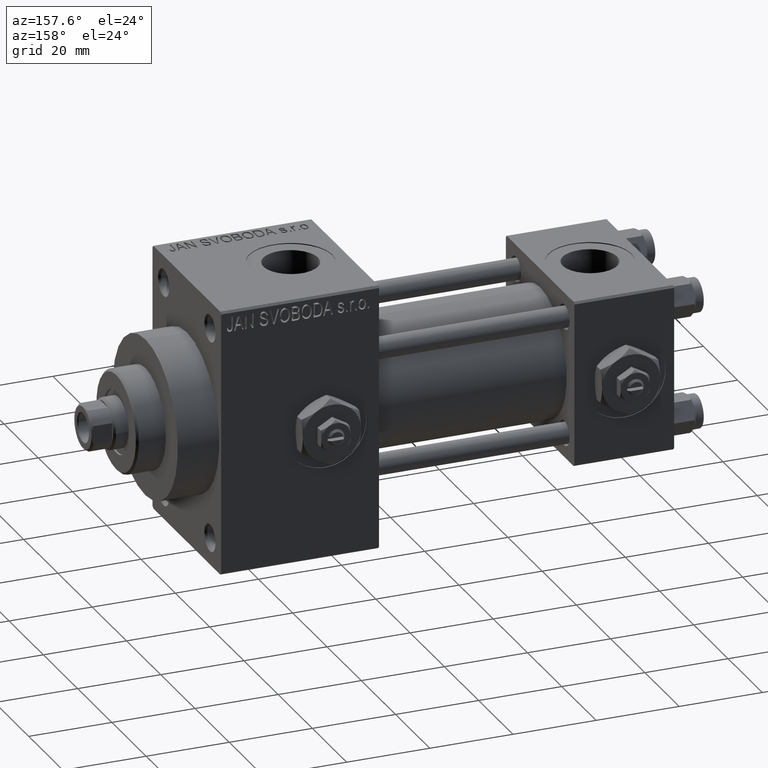
[diagram: clean part render]
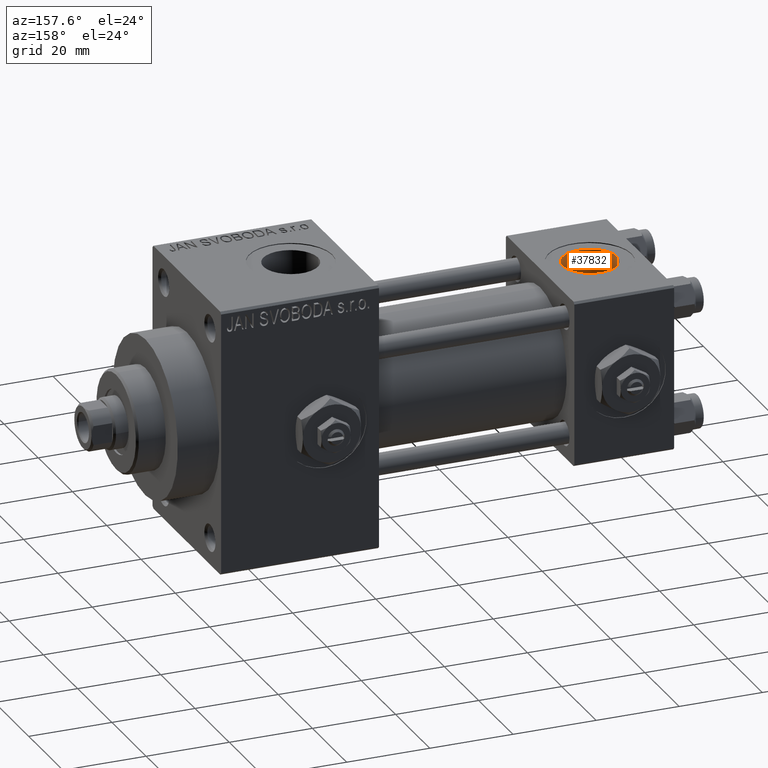
[diagram: same view with one face highlighted and labeled with its STEP entity id]
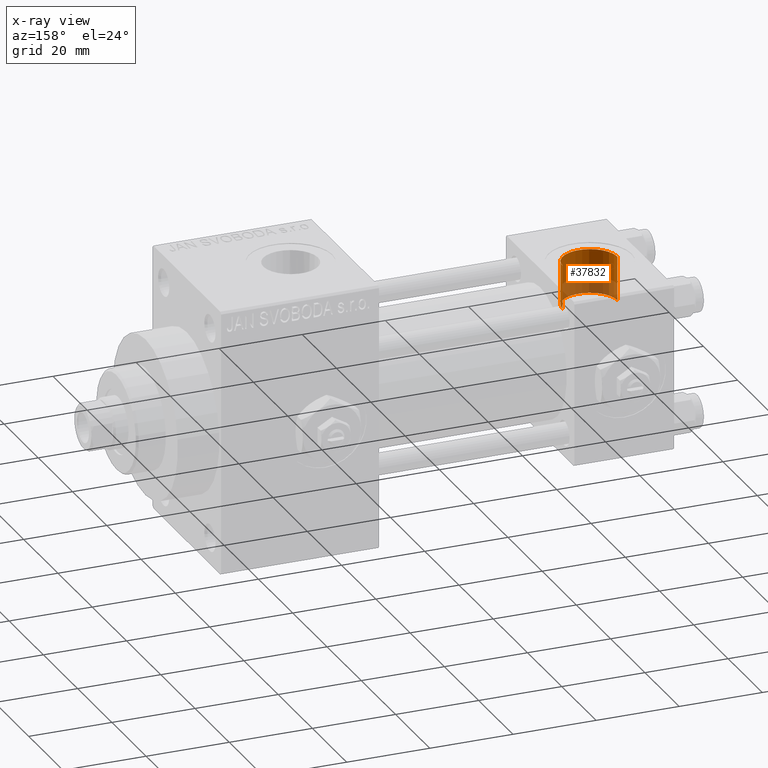
[diagram: x-ray of the same camera — body ghosted, the highlighted face saturated]
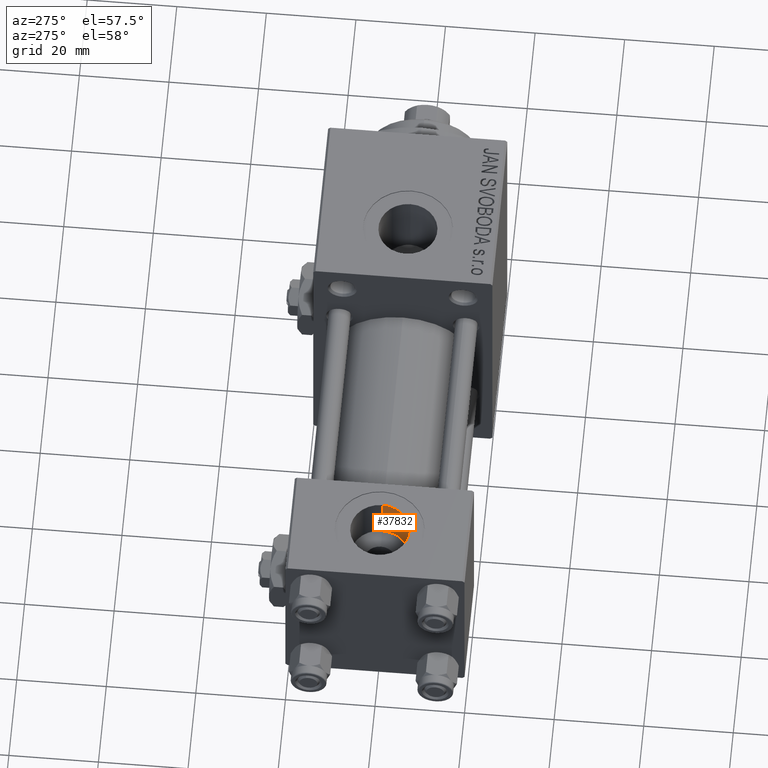
[diagram: same view with one face highlighted and labeled with its STEP entity id]
A machine part, auxiliary view. The second image highlights one B-rep face of the part: STEP entity #37832.
The next image is the same camera in x-ray: the body ghosted, the highlighted face saturated — about 36% of this face is hidden behind the body in this view.
A second angle (auxiliary view) of the same face is appended — the face is thin or edge-on in the first view.
In plain terms, the highlighted cylindrical surface (edge-blend (fillet) strip) has radius 6.58 mm, axis along (0, 0, 1).
Its self-contained STEP definition (entity closure, byte-faithful):
#101 = CARTESIAN_POINT ( 'NONE',  ( 12.00000000000000000, 1.540743955509788682E-30, 19.79999999999999716 ) ) ;
#6862 = DIRECTION ( 'NONE',  ( -0.000000000000000000, -0.000000000000000000, -1.000000000000000000 ) ) ;
#16553 = VERTEX_POINT ( 'NONE', #37769 ) ;
#17333 = EDGE_CURVE ( 'NONE', #41473, #44595, #42569, .T. ) ;
#17388 = FACE_OUTER_BOUND ( 'NONE', #21787, .T. ) ;
#17855 = EDGE_CURVE ( 'NONE', #21053, #44595, #25239, .T. ) ;
#18052 = VECTOR ( 'NONE', #44605, 1000.000000000000000 ) ;
#18191 = AXIS2_PLACEMENT_3D ( 'NONE', #48172, #25332, #40730 ) ;
#19872 = EDGE_CURVE ( 'NONE', #21053, #16553, #21941, .T. ) ;
#21053 = VERTEX_POINT ( 'NONE', #27824 ) ;
#21787 = EDGE_LOOP ( 'NONE', ( #25940, #45505, #48050, #38263 ) ) ;
#21941 = CIRCLE ( 'NONE', #44945, 6.579999999999999183 ) ;
#21979 = AXIS2_PLACEMENT_3D ( 'NONE', #101, #26384, #41302 ) ;
#23262 = LINE ( 'NONE', #26972, #34485 ) ;
#23839 = EDGE_CURVE ( 'NONE', #16553, #41473, #23262, .T. ) ;
#25239 = LINE ( 'NONE', #29435, #18052 ) ;
#25332 = DIRECTION ( 'NONE',  ( -0.000000000000000000, -0.000000000000000000, 1.000000000000000000 ) ) ;
#25940 = ORIENTED_EDGE ( 'NONE', *, *, #19872, .T. ) ;
#26384 = DIRECTION ( 'NONE',  ( 0.000000000000000000, 0.000000000000000000, 1.000000000000000000 ) ) ;
#26972 = CARTESIAN_POINT ( 'NONE',  ( 5.420000000000000817, 8.058175938389596335E-16, 9.199999999999995737 ) ) ;
#27824 = CARTESIAN_POINT ( 'NONE',  ( 18.57999999999999829, 1.540743955509788682E-30, 9.165987261146492315 ) ) ;
#29435 = CARTESIAN_POINT ( 'NONE',  ( 18.57999999999999829, 1.540743955509788682E-30, 9.199999999999995737 ) ) ;
#31320 = CARTESIAN_POINT ( 'NONE',  ( 5.420000000000000817, 8.058175938389596335E-16, 19.79999999999999716 ) ) ;
#33008 = CYLINDRICAL_SURFACE ( 'NONE', #18191, 6.579999999999999183 ) ;
#34485 = VECTOR ( 'NONE', #42630, 1000.000000000000000 ) ;
#37769 = CARTESIAN_POINT ( 'NONE',  ( 5.420000000000000817, 8.058175938389596335E-16, 9.165987261146492315 ) ) ;
#37832 = ADVANCED_FACE ( 'NONE', ( #17388 ), #33008, .F. ) ;
#38263 = ORIENTED_EDGE ( 'NONE', *, *, #17855, .F. ) ;
#40730 = DIRECTION ( 'NONE',  ( 1.000000000000000000, 0.000000000000000000, 0.000000000000000000 ) ) ;
#41302 = DIRECTION ( 'NONE',  ( 1.000000000000000000, 0.000000000000000000, 0.000000000000000000 ) ) ;
#41473 = VERTEX_POINT ( 'NONE', #31320 ) ;
#42569 = CIRCLE ( 'NONE', #21979, 6.579999999999999183 ) ;
#42630 = DIRECTION ( 'NONE',  ( -0.000000000000000000, -0.000000000000000000, 1.000000000000000000 ) ) ;
#44358 = CARTESIAN_POINT ( 'NONE',  ( 12.00000000000000000, 1.540743955509788682E-30, 9.165987261146492315 ) ) ;
#44595 = VERTEX_POINT ( 'NONE', #46955 ) ;
#44605 = DIRECTION ( 'NONE',  ( -0.000000000000000000, -0.000000000000000000, 1.000000000000000000 ) ) ;
#44945 = AXIS2_PLACEMENT_3D ( 'NONE', #44358, #6862, #47579 ) ;
#45505 = ORIENTED_EDGE ( 'NONE', *, *, #23839, .T. ) ;
#46955 = CARTESIAN_POINT ( 'NONE',  ( 18.57999999999999829, 1.540743955509788682E-30, 19.79999999999999716 ) ) ;
#47579 = DIRECTION ( 'NONE',  ( 1.000000000000000000, 0.000000000000000000, 0.000000000000000000 ) ) ;
#48050 = ORIENTED_EDGE ( 'NONE', *, *, #17333, .T. ) ;
#48172 = CARTESIAN_POINT ( 'NONE',  ( 12.00000000000000000, 1.540743955509788682E-30, 9.199999999999995737 ) ) ;